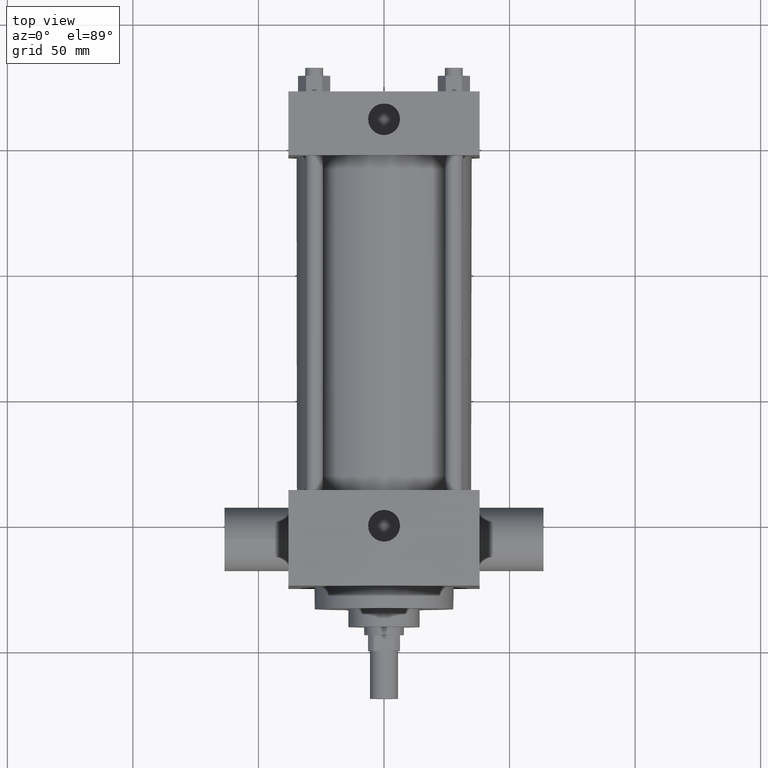
[diagram: clean part render]
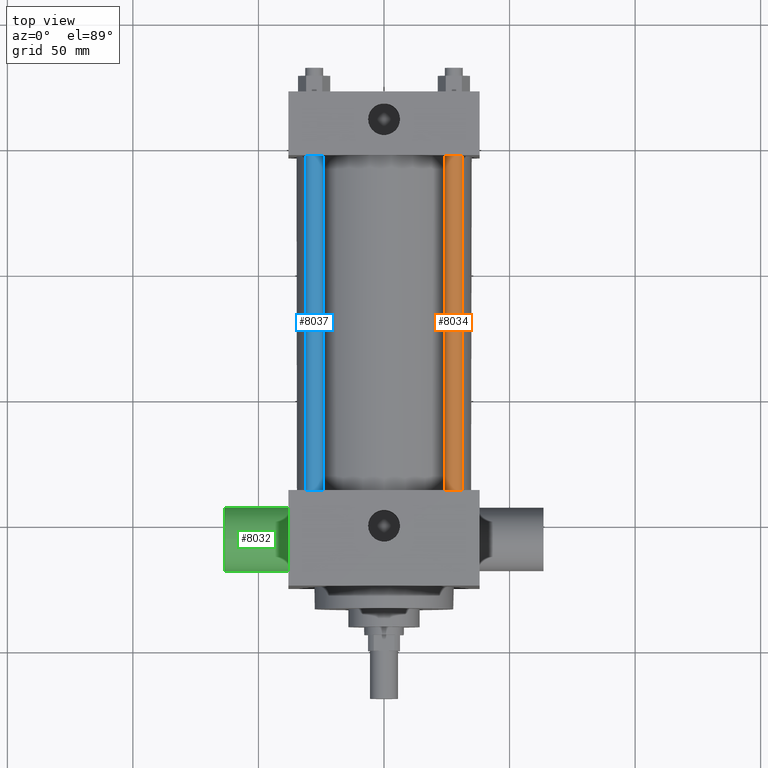
[diagram: same view with three faces highlighted in distinct colors, each labeled with its STEP entity id]
A machine part, top view with three faces highlighted in distinct colors.
Their STEP definitions:

[orange] entity #8034 — the highlighted cylindrical surface (bore or boss wall) has radius 3.5687 mm, axis along (0, 1, 0).
#511=EDGE_CURVE('',#517,#517,#512,.T.);
#512=CIRCLE('',#513,3.568700000E+000);
#513=AXIS2_PLACEMENT_3D('',#514,#515,#516);
#514=CARTESIAN_POINT('',(2.781300000E+001,6.350000000E+001,2.781300000E+001));
#515=DIRECTION('',(0.0E+000,-1.0E+000,0.0E+000));
#516=DIRECTION('',(0.0E+000,0.0E+000,-1.0E+000));
#517=VERTEX_POINT('',#518);
#518=CARTESIAN_POINT('',(2.781300000E+001,6.350000000E+001,2.424430000E+001));
#1379=FACE_OUTER_BOUND('',#1381,.T.);
#1380=FACE_BOUND('',#1382,.T.);
#1381=EDGE_LOOP('',(#1383));
#1382=EDGE_LOOP('',(#1384));
#1383=ORIENTED_EDGE('',*,*,#511,.F.);
#1384=ORIENTED_EDGE('',*,*,#1431,.T.);
#1385=CYLINDRICAL_SURFACE('',#1386,3.568700000E+000);
#1386=AXIS2_PLACEMENT_3D('',#1387,#1388,#1389);
#1387=CARTESIAN_POINT('',(2.781300000E+001,6.350000000E+001,2.781300000E+001));
#1388=DIRECTION('',(0.0E+000,1.0E+000,0.0E+000));
#1389=DIRECTION('',(0.0E+000,0.0E+000,-1.0E+000));
#1431=EDGE_CURVE('',#1437,#1437,#1432,.T.);
#1432=CIRCLE('',#1433,3.568700000E+000);
#1433=AXIS2_PLACEMENT_3D('',#1434,#1435,#1436);
#1434=CARTESIAN_POINT('',(2.781300000E+001,1.968500000E+002,2.781300000E+001));
#1435=DIRECTION('',(0.0E+000,-1.0E+000,0.0E+000));
#1436=DIRECTION('',(-1.0E+000,0.0E+000,0.0E+000));
#1437=VERTEX_POINT('',#1438);
#1438=CARTESIAN_POINT('',(2.424430000E+001,1.968500000E+002,2.781300000E+001));
#8034=ADVANCED_FACE('',(#1379,#1380),#1385,.T.);

[blue] entity #8037 — the highlighted cylindrical surface (bore or boss wall) has radius 3.5687 mm, axis along (0, -1, 0).
#570=EDGE_CURVE('',#576,#576,#571,.T.);
#571=CIRCLE('',#572,3.568700000E+000);
#572=AXIS2_PLACEMENT_3D('',#573,#574,#575);
#573=CARTESIAN_POINT('',(-2.781300000E+001,6.350000000E+001,2.781300000E+001));
#574=DIRECTION('',(0.0E+000,-1.0E+000,0.0E+000));
#575=DIRECTION('',(0.0E+000,0.0E+000,-1.0E+000));
#576=VERTEX_POINT('',#577);
#577=CARTESIAN_POINT('',(-2.781300000E+001,6.350000000E+001,2.424430000E+001));
#1412=FACE_OUTER_BOUND('',#1414,.T.);
#1413=FACE_BOUND('',#1415,.T.);
#1414=EDGE_LOOP('',(#1416));
#1415=EDGE_LOOP('',(#1417));
#1416=ORIENTED_EDGE('',*,*,#1471,.F.);
#1417=ORIENTED_EDGE('',*,*,#570,.F.);
#1418=CYLINDRICAL_SURFACE('',#1419,3.568700000E+000);
#1419=AXIS2_PLACEMENT_3D('',#1420,#1421,#1422);
#1420=CARTESIAN_POINT('',(-2.781300000E+001,1.968500000E+002,2.781300000E+001));
#1421=DIRECTION('',(0.0E+000,-1.0E+000,0.0E+000));
#1422=DIRECTION('',(0.0E+000,0.0E+000,-1.0E+000));
#1471=EDGE_CURVE('',#1477,#1477,#1472,.T.);
#1472=CIRCLE('',#1473,3.568700000E+000);
#1473=AXIS2_PLACEMENT_3D('',#1474,#1475,#1476);
#1474=CARTESIAN_POINT('',(-2.781300000E+001,1.968500000E+002,2.781300000E+001));
#1475=DIRECTION('',(0.0E+000,1.0E+000,0.0E+000));
#1476=DIRECTION('',(1.0E+000,0.0E+000,0.0E+000));
#1477=VERTEX_POINT('',#1478);
#1478=CARTESIAN_POINT('',(-2.424430000E+001,1.968500000E+002,2.781300000E+001));
#8037=ADVANCED_FACE('',(#1412,#1413),#1418,.T.);

[green] entity #8032 — the highlighted cylindrical surface (bore or boss wall) has radius 12.7 mm, axis along (1, 0, 0).
#706=EDGE_CURVE('',#712,#712,#707,.T.);
#707=CIRCLE('',#708,1.270000000E+001);
#708=AXIS2_PLACEMENT_3D('',#709,#710,#711);
#709=CARTESIAN_POINT('',(-3.810000000E+001,4.445000000E+001,0.000000000E+000));
#710=DIRECTION('',(1.0E+000,0.0E+000,0.0E+000));
#711=DIRECTION('',(0.0E+000,0.0E+000,1.0E+000));
#712=VERTEX_POINT('',#713);
#713=CARTESIAN_POINT('',(-3.810000000E+001,4.445000000E+001,1.270000000E+001));
#826=EDGE_CURVE('',#832,#832,#827,.T.);
#827=CIRCLE('',#828,1.270000000E+001);
#828=AXIS2_PLACEMENT_3D('',#829,#830,#831);
#829=CARTESIAN_POINT('',(-6.350000000E+001,4.445000000E+001,0.000000000E+000));
#830=DIRECTION('',(-1.0E+000,0.0E+000,0.0E+000));
#831=DIRECTION('',(0.0E+000,0.0E+000,1.0E+000));
#832=VERTEX_POINT('',#833);
#833=CARTESIAN_POINT('',(-6.350000000E+001,4.445000000E+001,1.270000000E+001));
#839=FACE_OUTER_BOUND('',#841,.T.);
#840=FACE_BOUND('',#842,.T.);
#841=EDGE_LOOP('',(#843));
#842=EDGE_LOOP('',(#844));
#843=ORIENTED_EDGE('',*,*,#826,.F.);
#844=ORIENTED_EDGE('',*,*,#706,.F.);
#845=CYLINDRICAL_SURFACE('',#846,1.270000000E+001);
#846=AXIS2_PLACEMENT_3D('',#847,#848,#849);
#847=CARTESIAN_POINT('',(-3.810000000E+001,4.445000000E+001,0.000000000E+000));
#848=DIRECTION('',(1.0E+000,0.0E+000,0.0E+000));
#849=DIRECTION('',(0.0E+000,0.0E+000,1.0E+000));
#8032=ADVANCED_FACE('',(#839,#840),#845,.F.);